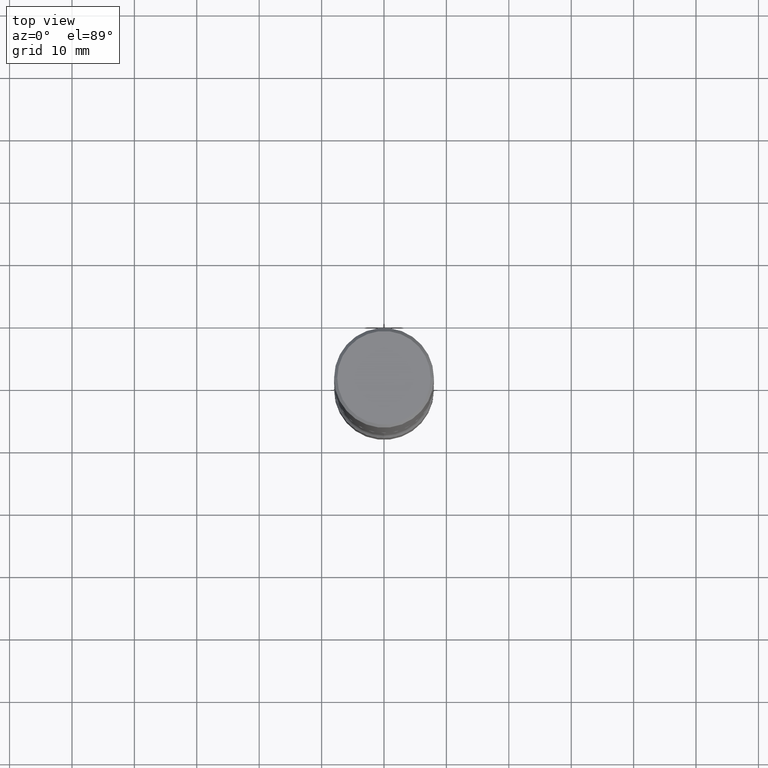
[diagram: clean part render]
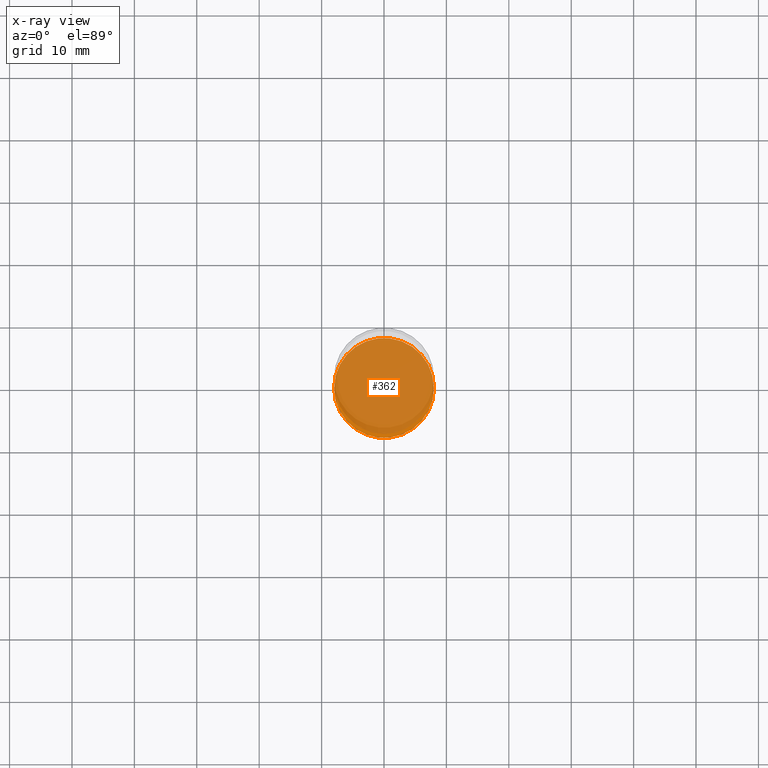
[diagram: x-ray — body ghosted, one internal face saturated and labeled with its STEP entity id]
A machine part, top view, then the same camera in x-ray: the body is ghosted and one INTERNAL B-rep face — a face not visible from any outside direction — is saturated and labeled: STEP entity #362.
In plain terms, the highlighted planar face has unit normal (0, -0, -1).
Its self-contained STEP definition (entity closure, byte-faithful):
#43 = CARTESIAN_POINT ( 'NONE',  ( 0.3149500000000002298, -1.525812259887842266E-14, -3.740199999999999747 ) ) ;
#57 = CARTESIAN_POINT ( 'NONE',  ( 9.146542428893647141E-29, -1.305883850354113279E-14, -3.740199999999999747 ) ) ;
#65 = ORIENTED_EDGE ( 'NONE', *, *, #348, .T. ) ;
#68 = AXIS2_PLACEMENT_3D ( 'NONE', #81, #256, #392 ) ;
#80 = PLANE ( 'NONE',  #213 ) ;
#81 = CARTESIAN_POINT ( 'NONE',  ( 9.146542428893647141E-29, -1.305883850354113279E-14, -3.740199999999999747 ) ) ;
#117 = ORIENTED_EDGE ( 'NONE', *, *, #244, .T. ) ;
#118 = CIRCLE ( 'NONE', #68, 0.3149500000000002298 ) ;
#136 = FACE_OUTER_BOUND ( 'NONE', #162, .T. ) ;
#162 = EDGE_LOOP ( 'NONE', ( #117, #65 ) ) ;
#176 = CARTESIAN_POINT ( 'NONE',  ( -0.3149500000000002298, -1.198940838730855371E-14, -3.740199999999999747 ) ) ;
#213 = AXIS2_PLACEMENT_3D ( 'NONE', #57, #320, #375 ) ;
#231 = VERTEX_POINT ( 'NONE', #43 ) ;
#232 = DIRECTION ( 'NONE',  ( 1.000000000000000000, -6.982962677686264344E-15, 0.000000000000000000 ) ) ;
#244 = EDGE_CURVE ( 'NONE', #231, #503, #118, .T. ) ;
#256 = DIRECTION ( 'NONE',  ( -2.445468806185136597E-29, 3.491481338843145583E-15, 1.000000000000000000 ) ) ;
#273 = CARTESIAN_POINT ( 'NONE',  ( 9.146542428893647141E-29, -1.305883850354113279E-14, -3.740199999999999747 ) ) ;
#319 = CIRCLE ( 'NONE', #339, 0.3149500000000002298 ) ;
#320 = DIRECTION ( 'NONE',  ( 2.438088387897960049E-29, -3.491481338843145188E-15, -1.000000000000000000 ) ) ;
#339 = AXIS2_PLACEMENT_3D ( 'NONE', #273, #431, #232 ) ;
#348 = EDGE_CURVE ( 'NONE', #503, #231, #319, .T. ) ;
#362 = ADVANCED_FACE ( 'NONE', ( #136 ), #80, .F. ) ;
#375 = DIRECTION ( 'NONE',  ( -1.000000000000000000, 6.982962677686265922E-15, -4.876176775795935793E-29 ) ) ;
#392 = DIRECTION ( 'NONE',  ( 1.000000000000000000, -6.982962677686264344E-15, 0.000000000000000000 ) ) ;
#431 = DIRECTION ( 'NONE',  ( -2.445468806185136597E-29, 3.491481338843145583E-15, 1.000000000000000000 ) ) ;
#503 = VERTEX_POINT ( 'NONE', #176 ) ;